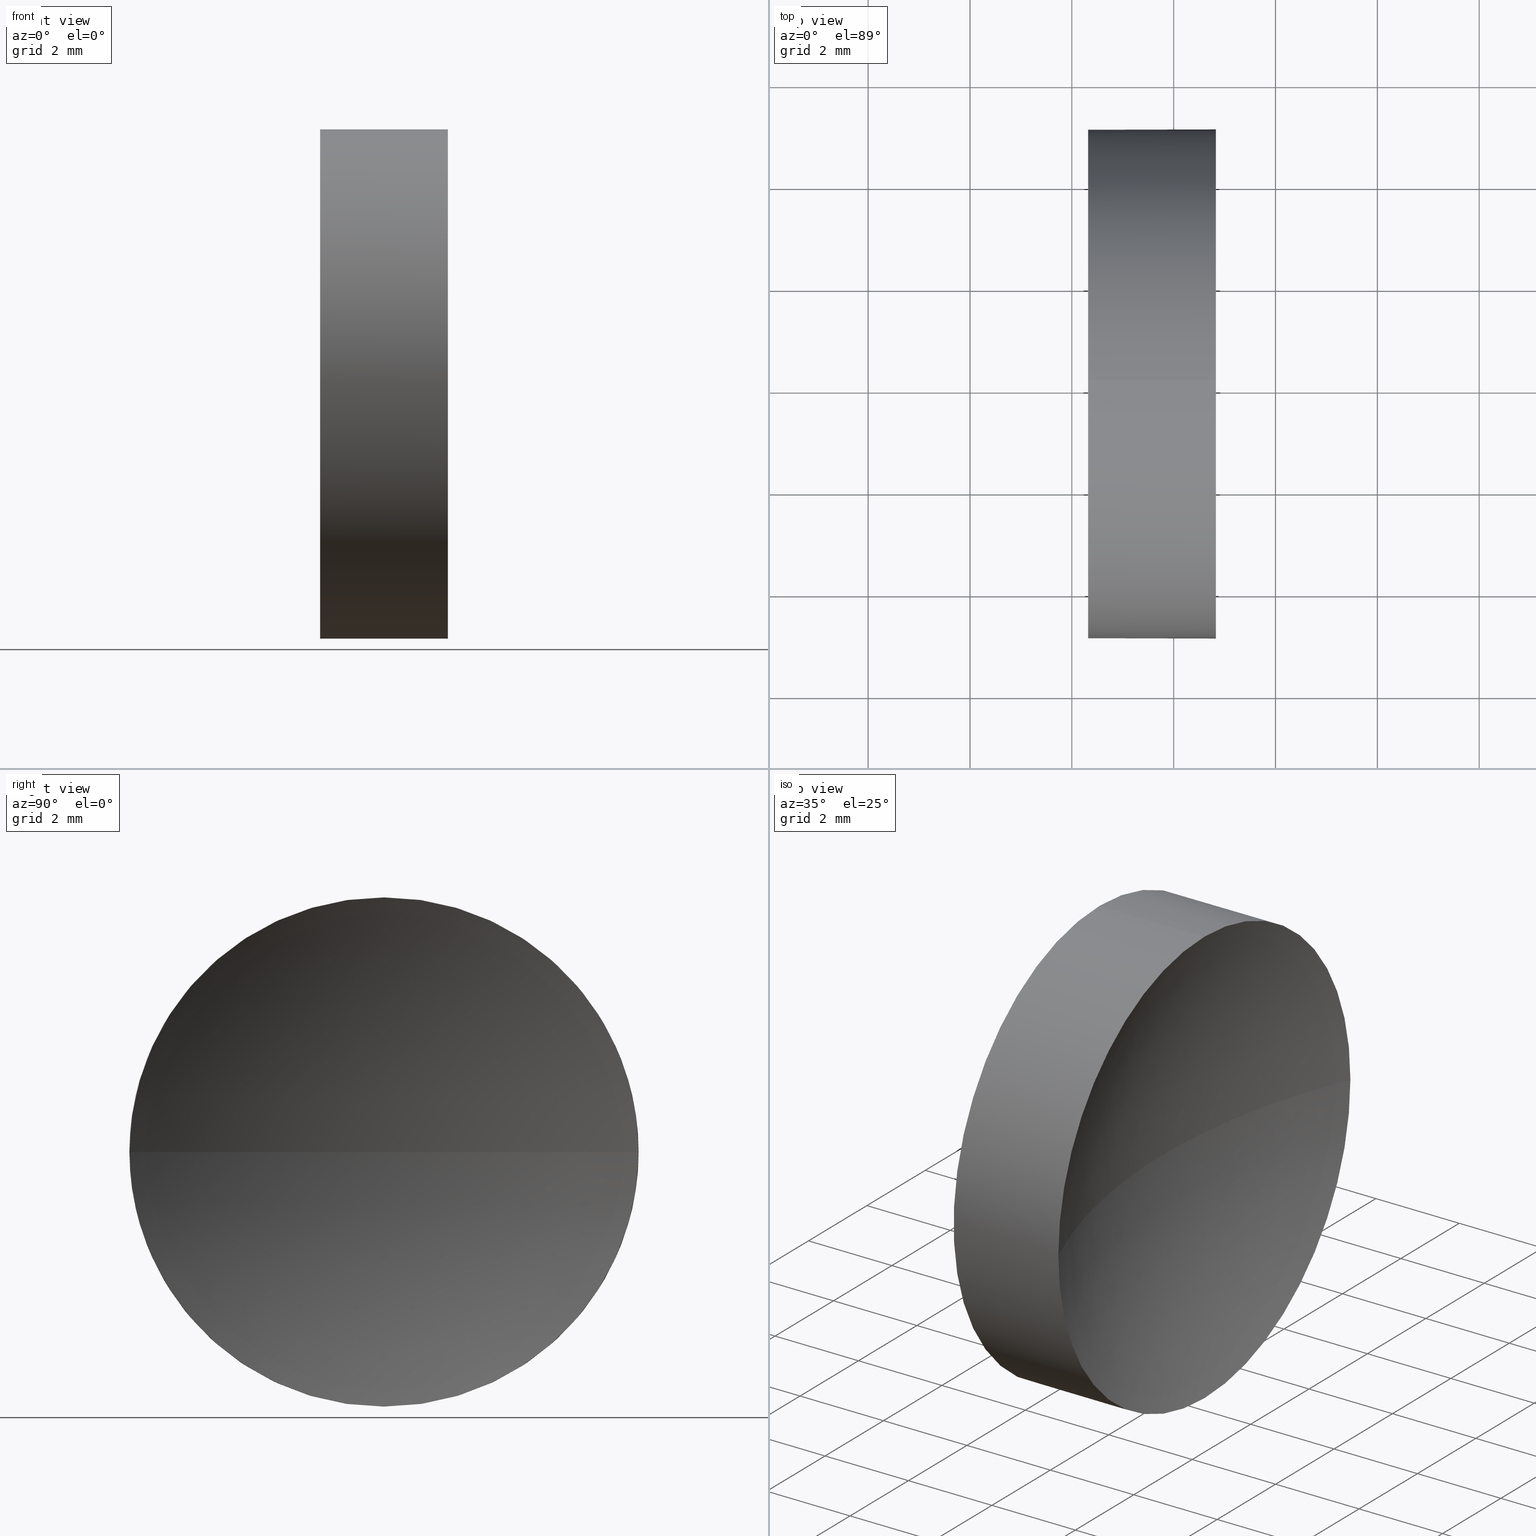
[diagram: canonical four-view strip — front | top / right | iso, engineering-drawing reading convention]
A machine part, canonical four-view strip (front | top / right | iso — engineering-drawing reading convention). The complete STEP part file that produces these views, byte-faithful:
ISO-10303-21;
HEADER;
FILE_DESCRIPTION (( 'STEP AP214' ),
    '1' );
FILE_NAME ('120013.STEP',
    '2019-06-14T05:32:41',
    ( '' ),
    ( '' ),
    'SwSTEP 2.0',
    'SolidWorks 2016',
    '' );
FILE_SCHEMA (( 'AUTOMOTIVE_DESIGN' ));
ENDSEC;

DATA;
#1 = EDGE_CURVE ( 'NONE', #11, #20, #21, .T. ) ;
#2 = CARTESIAN_POINT ( 'NONE',  ( 45.81958524454067600, 26.08904114919495900, 0.0000000000000000000 ) ) ;
#3 = MANIFOLD_SOLID_BREP ( '��ת1', #96 ) ;
#4 = EDGE_CURVE ( 'NONE', #20, #98, #167, .T. ) ;
#5 = ORIENTED_EDGE ( 'NONE', *, *, #84, .F. ) ;
#6 = CARTESIAN_POINT ( 'NONE',  ( 46.82958549791030100, 31.08904114919495500, 6.123233995736764300E-016 ) ) ;
#7 = DIRECTION ( 'NONE',  ( -1.000000000000000000, -0.0000000000000000000, -0.0000000000000000000 ) ) ;
#8 = CARTESIAN_POINT ( 'NONE',  ( 58.70081989027306700, 26.08904114919495900, 0.0000000000000000000 ) ) ;
#9 = AXIS2_PLACEMENT_3D ( 'NONE', #68, #47, #123 ) ;
#10 = DIRECTION ( 'NONE',  ( -1.000000000000000000, -0.0000000000000000000, -0.0000000000000000000 ) ) ;
#11 = VERTEX_POINT ( 'NONE', #87 ) ;
#12 = PRODUCT ( '120013', '120013', '', ( #69 ) ) ;
#13 = ORIENTED_EDGE ( 'NONE', *, *, #95, .F. ) ;
#14 = EDGE_LOOP ( 'NONE', ( #83, #94 ) ) ;
#15 = DIRECTION ( 'NONE',  ( 0.0000000000000000000, -1.000000000000000000, -1.224646799147353500E-016 ) ) ;
#16 = DIRECTION ( 'NONE',  ( -1.000000000000000000, -0.0000000000000000000, -0.0000000000000000000 ) ) ;
#17 = CARTESIAN_POINT ( 'NONE',  ( 46.82958549791030100, 26.08904114919495900, 0.0000000000000000000 ) ) ;
#18 = EDGE_CURVE ( 'NONE', #118, #54, #30, .T. ) ;
#19 = DIRECTION ( 'NONE',  ( 0.0000000000000000000, 0.0000000000000000000, 1.000000000000000000 ) ) ;
#20 = VERTEX_POINT ( 'NONE', #6 ) ;
#21 = CIRCLE ( 'NONE', #109, 5.000000000000000900 ) ;
#22 = APPLICATION_PROTOCOL_DEFINITION ( 'draft international standard', 'automotive_design', 1998, #184 ) ;
#23 = VECTOR ( 'NONE', #39, 1000.000000000000000 ) ;
#24 = FACE_OUTER_BOUND ( 'NONE', #76, .T. ) ;
#25 = COLOUR_RGB ( '',1.000000000000000000, 1.000000000000000000, 1.000000000000000000 ) ;
#26 = MECHANICAL_DESIGN_GEOMETRIC_PRESENTATION_REPRESENTATION (  '', ( #163 ), #119 ) ;
#27 = FILL_AREA_STYLE ('',( #86 ) ) ;
#28 = DIRECTION ( 'NONE',  ( -1.000000000000000000, -0.0000000000000000000, -0.0000000000000000000 ) ) ;
#29 = AXIS2_PLACEMENT_3D ( 'NONE', #137, #48, #81 ) ;
#30 = LINE ( 'NONE', #102, #23 ) ;
#31 = ORIENTED_EDGE ( 'NONE', *, *, #18, .T. ) ;
#32 = DIRECTION ( 'NONE',  ( -1.000000000000000000, -0.0000000000000000000, -0.0000000000000000000 ) ) ;
#33 =( LENGTH_UNIT ( ) NAMED_UNIT ( * ) SI_UNIT ( .MILLI., .METRE. ) );
#34 = CIRCLE ( 'NONE', #124, 5.000000000000000900 ) ;
#35 = VERTEX_POINT ( 'NONE', #134 ) ;
#36 = AXIS2_PLACEMENT_3D ( 'NONE', #17, #92, #165 ) ;
#37 = UNCERTAINTY_MEASURE_WITH_UNIT (LENGTH_MEASURE( 1.000000000000000100E-005 ), #63, 'distance_accuracy_value', 'NONE');
#38 = AXIS2_PLACEMENT_3D ( 'NONE', #153, #10, #65 ) ;
#39 = DIRECTION ( 'NONE',  ( -1.000000000000000000, -0.0000000000000000000, -0.0000000000000000000 ) ) ;
#40 = CARTESIAN_POINT ( 'NONE',  ( 42.44986111413682300, 26.08904114919495900, 5.000000000000000900 ) ) ;
#41 = DIRECTION ( 'NONE',  ( 0.0000000000000000000, 0.0000000000000000000, 1.000000000000000000 ) ) ;
#42 = FACE_OUTER_BOUND ( 'NONE', #88, .T. ) ;
#43 = ORIENTED_EDGE ( 'NONE', *, *, #4, .T. ) ;
#44 = CARTESIAN_POINT ( 'NONE',  ( 46.82958549791030100, 26.08904114919495900, -5.000000000000000900 ) ) ;
#45 =( GEOMETRIC_REPRESENTATION_CONTEXT ( 3 ) GLOBAL_UNCERTAINTY_ASSIGNED_CONTEXT ( ( #80 ) ) GLOBAL_UNIT_ASSIGNED_CONTEXT ( ( #33, #166, #164 ) ) REPRESENTATION_CONTEXT ( 'NONE', 'WORKASPACE' ) );
#46 = DIRECTION ( 'NONE',  ( 0.0000000000000000000, 0.0000000000000000000, 1.000000000000000000 ) ) ;
#47 = DIRECTION ( 'NONE',  ( -1.000000000000000000, -0.0000000000000000000, -0.0000000000000000000 ) ) ;
#48 = DIRECTION ( 'NONE',  ( 0.0000000000000000000, 0.0000000000000000000, 1.000000000000000000 ) ) ;
#49 = PRODUCT_DEFINITION ( 'δ֪', '', #71, #75 ) ;
#50 = CIRCLE ( 'NONE', #130, 12.88123464573238900 ) ;
#51 = STYLED_ITEM ( 'NONE', ( #170 ), #127 ) ;
#52 = ADVANCED_FACE ( 'NONE', ( #151 ), #70, .F. ) ;
#53 = ORIENTED_EDGE ( 'NONE', *, *, #84, .T. ) ;
#54 = VERTEX_POINT ( 'NONE', #77 ) ;
#55 = EDGE_CURVE ( 'NONE', #11, #35, #57, .T. ) ;
#56 = SURFACE_STYLE_USAGE ( .BOTH. , #162 ) ;
#57 = LINE ( 'NONE', #40, #156 ) ;
#58 = ORIENTED_EDGE ( 'NONE', *, *, #97, .T. ) ;
#59 = CARTESIAN_POINT ( 'NONE',  ( 44.31958549791029600, 26.08904114919495900, 0.0000000000000000000 ) ) ;
#60 = PRESENTATION_LAYER_ASSIGNMENT (  '', '', ( #51 ) ) ;
#61 = CARTESIAN_POINT ( 'NONE',  ( 58.70081989027306700, 26.08904114919495900, 0.0000000000000000000 ) ) ;
#62 = AXIS2_PLACEMENT_3D ( 'NONE', #91, #32, #46 ) ;
#63 =( LENGTH_UNIT ( ) NAMED_UNIT ( * ) SI_UNIT ( .MILLI., .METRE. ) );
#64 = ORIENTED_EDGE ( 'NONE', *, *, #55, .T. ) ;
#65 = DIRECTION ( 'NONE',  ( 0.0000000000000000000, 0.0000000000000000000, 1.000000000000000000 ) ) ;
#66 = FILL_AREA_STYLE_COLOUR ( '', #25 ) ;
#67 = FILL_AREA_STYLE ('',( #66 ) ) ;
#68 = CARTESIAN_POINT ( 'NONE',  ( 44.31958549791029600, 26.08904114919495900, 0.0000000000000000000 ) ) ;
#69 = PRODUCT_CONTEXT ( 'NONE', #78, 'mechanical' ) ;
#70 = SPHERICAL_SURFACE ( 'NONE', #185, 12.88123464573238900 ) ;
#71 = PRODUCT_DEFINITION_FORMATION_WITH_SPECIFIED_SOURCE ( '�κ�', '', #12, .NOT_KNOWN. ) ;
#72 = ADVANCED_FACE ( 'NONE', ( #183 ), #174, .F. ) ;
#73 = COLOUR_RGB ( '',1.000000000000000000, 1.000000000000000000, 1.000000000000000000 ) ;
#74 = CYLINDRICAL_SURFACE ( 'NONE', #62, 5.000000000000000900 ) ;
#75 = PRODUCT_DEFINITION_CONTEXT ( 'detailed design', #184, 'design' ) ;
#76 = EDGE_LOOP ( 'NONE', ( #104, #31, #136, #158, #157 ) ) ;
#77 = CARTESIAN_POINT ( 'NONE',  ( 44.31958549791029600, 26.08904114919495900, -5.000000000000000900 ) ) ;
#78 = APPLICATION_CONTEXT ( 'automotive_design' ) ;
#79 =( LENGTH_UNIT ( ) NAMED_UNIT ( * ) SI_UNIT ( .MILLI., .METRE. ) );
#80 = UNCERTAINTY_MEASURE_WITH_UNIT (LENGTH_MEASURE( 1.000000000000000100E-005 ), #33, 'distance_accuracy_value', 'NONE');
#81 = DIRECTION ( 'NONE',  ( 0.0000000000000000000, -1.000000000000000000, 0.0000000000000000000 ) ) ;
#82 = SPHERICAL_SURFACE ( 'NONE', #29, 12.88123464573238900 ) ;
#83 = ORIENTED_EDGE ( 'NONE', *, *, #155, .T. ) ;
#84 = EDGE_CURVE ( 'NONE', #177, #11, #34, .T. ) ;
#85 =( NAMED_UNIT ( * ) PLANE_ANGLE_UNIT ( ) SI_UNIT ( $, .RADIAN. ) );
#86 = FILL_AREA_STYLE_COLOUR ( '', #73 ) ;
#87 = CARTESIAN_POINT ( 'NONE',  ( 46.82958549791030100, 26.08904114919495900, 5.000000000000000900 ) ) ;
#88 = EDGE_LOOP ( 'NONE', ( #99, #58, #53, #64, #111 ) ) ;
#89 = CARTESIAN_POINT ( 'NONE',  ( 44.31958549791029600, 26.08904114919495900, 0.0000000000000000000 ) ) ;
#90 = EDGE_CURVE ( 'NONE', #54, #35, #172, .T. ) ;
#91 = CARTESIAN_POINT ( 'NONE',  ( 42.44986111413682300, 26.08904114919495900, 0.0000000000000000000 ) ) ;
#92 = DIRECTION ( 'NONE',  ( -1.000000000000000000, -0.0000000000000000000, -0.0000000000000000000 ) ) ;
#93 =( NAMED_UNIT ( * ) PLANE_ANGLE_UNIT ( ) SI_UNIT ( $, .RADIAN. ) );
#94 = ORIENTED_EDGE ( 'NONE', *, *, #90, .T. ) ;
#95 = EDGE_CURVE ( 'NONE', #177, #98, #50, .T. ) ;
#96 = CLOSED_SHELL ( 'NONE', ( #143, #52, #114, #117, #72 ) ) ;
#97 = EDGE_CURVE ( 'NONE', #118, #177, #135, .T. ) ;
#98 = VERTEX_POINT ( 'NONE', #2 ) ;
#99 = ORIENTED_EDGE ( 'NONE', *, *, #18, .F. ) ;
#100 = EDGE_CURVE ( 'NONE', #20, #118, #161, .T. ) ;
#101 = SURFACE_STYLE_FILL_AREA ( #67 ) ;
#102 = CARTESIAN_POINT ( 'NONE',  ( 42.44986111413682300, 26.08904114919495900, -5.000000000000000900 ) ) ;
#103 = DIRECTION ( 'NONE',  ( 1.000000000000000000, 0.0000000000000000000, 0.0000000000000000000 ) ) ;
#104 = ORIENTED_EDGE ( 'NONE', *, *, #100, .T. ) ;
#105 = CARTESIAN_POINT ( 'NONE',  ( 46.82958549791030100, 26.08904114919495900, 0.0000000000000000000 ) ) ;
#106 = CARTESIAN_POINT ( 'NONE',  ( 46.82958549791030100, 26.08904114919495900, 0.0000000000000000000 ) ) ;
#107 = DIRECTION ( 'NONE',  ( 0.0000000000000000000, 0.0000000000000000000, 1.000000000000000000 ) ) ;
#108 = SHAPE_DEFINITION_REPRESENTATION ( #186, #127 ) ;
#109 = AXIS2_PLACEMENT_3D ( 'NONE', #105, #176, #41 ) ;
#110 =( NAMED_UNIT ( * ) SI_UNIT ( $, .STERADIAN. ) SOLID_ANGLE_UNIT ( ) );
#111 = ORIENTED_EDGE ( 'NONE', *, *, #90, .F. ) ;
#112 = MECHANICAL_DESIGN_GEOMETRIC_PRESENTATION_REPRESENTATION (  '', ( #51 ), #139 ) ;
#113 = AXIS2_PLACEMENT_3D ( 'NONE', #61, #132, #15 ) ;
#114 = ADVANCED_FACE ( 'NONE', ( #128 ), #82, .F. ) ;
#115 = UNCERTAINTY_MEASURE_WITH_UNIT (LENGTH_MEASURE( 1.000000000000000100E-005 ), #79, 'distance_accuracy_value', 'NONE');
#116 = AXIS2_PLACEMENT_3D ( 'NONE', #59, #103, #147 ) ;
#117 = ADVANCED_FACE ( 'NONE', ( #42 ), #175, .T. ) ;
#118 = VERTEX_POINT ( 'NONE', #44 ) ;
#119 =( GEOMETRIC_REPRESENTATION_CONTEXT ( 3 ) GLOBAL_UNCERTAINTY_ASSIGNED_CONTEXT ( ( #37 ) ) GLOBAL_UNIT_ASSIGNED_CONTEXT ( ( #63, #85, #146 ) ) REPRESENTATION_CONTEXT ( 'NONE', 'WORKASPACE' ) );
#120 = ORIENTED_EDGE ( 'NONE', *, *, #4, .F. ) ;
#121 = AXIS2_PLACEMENT_3D ( 'NONE', #150, #178, #179 ) ;
#122 = DIRECTION ( 'NONE',  ( -1.000000000000000000, 0.0000000000000000000, 0.0000000000000000000 ) ) ;
#123 = DIRECTION ( 'NONE',  ( 0.0000000000000000000, 0.0000000000000000000, 1.000000000000000000 ) ) ;
#124 = AXIS2_PLACEMENT_3D ( 'NONE', #106, #7, #19 ) ;
#125 = CIRCLE ( 'NONE', #9, 5.000000000000000900 ) ;
#126 = DIRECTION ( 'NONE',  ( 1.000000000000000000, 0.0000000000000000000, 0.0000000000000000000 ) ) ;
#127 = ADVANCED_BREP_SHAPE_REPRESENTATION ( '120013', ( #3, #160 ), #45 ) ;
#128 = FACE_OUTER_BOUND ( 'NONE', #133, .T. ) ;
#129 = EDGE_LOOP ( 'NONE', ( #142, #43, #13, #148 ) ) ;
#130 = AXIS2_PLACEMENT_3D ( 'NONE', #8, #182, #122 ) ;
#131 = AXIS2_PLACEMENT_3D ( 'NONE', #89, #16, #107 ) ;
#132 = DIRECTION ( 'NONE',  ( 0.0000000000000000000, -1.224646799147353200E-016, 1.000000000000000000 ) ) ;
#133 = EDGE_LOOP ( 'NONE', ( #120, #144, #5, #141 ) ) ;
#134 = CARTESIAN_POINT ( 'NONE',  ( 44.31958549791029600, 26.08904114919495900, 5.000000000000000900 ) ) ;
#135 = CIRCLE ( 'NONE', #36, 5.000000000000000900 ) ;
#136 = ORIENTED_EDGE ( 'NONE', *, *, #155, .F. ) ;
#137 = CARTESIAN_POINT ( 'NONE',  ( 58.70081989027306700, 26.08904114919495900, 0.0000000000000000000 ) ) ;
#138 = APPLICATION_PROTOCOL_DEFINITION ( 'draft international standard', 'automotive_design', 1998, #78 ) ;
#139 =( GEOMETRIC_REPRESENTATION_CONTEXT ( 3 ) GLOBAL_UNCERTAINTY_ASSIGNED_CONTEXT ( ( #115 ) ) GLOBAL_UNIT_ASSIGNED_CONTEXT ( ( #79, #93, #110 ) ) REPRESENTATION_CONTEXT ( 'NONE', 'WORKASPACE' ) );
#140 = SURFACE_STYLE_USAGE ( .BOTH. , #180 ) ;
#141 = ORIENTED_EDGE ( 'NONE', *, *, #95, .T. ) ;
#142 = ORIENTED_EDGE ( 'NONE', *, *, #100, .F. ) ;
#143 = ADVANCED_FACE ( 'NONE', ( #24 ), #74, .T. ) ;
#144 = ORIENTED_EDGE ( 'NONE', *, *, #1, .F. ) ;
#145 = CARTESIAN_POINT ( 'NONE',  ( 58.70081989027306700, 26.08904114919495900, 0.0000000000000000000 ) ) ;
#146 =( NAMED_UNIT ( * ) SI_UNIT ( $, .STERADIAN. ) SOLID_ANGLE_UNIT ( ) );
#147 = DIRECTION ( 'NONE',  ( 0.0000000000000000000, 0.0000000000000000000, -1.000000000000000000 ) ) ;
#148 = ORIENTED_EDGE ( 'NONE', *, *, #97, .F. ) ;
#149 = DIRECTION ( 'NONE',  ( 0.0000000000000000000, -1.000000000000000000, 0.0000000000000000000 ) ) ;
#150 = CARTESIAN_POINT ( 'NONE',  ( 46.82958549791030100, 26.08904114919495900, 0.0000000000000000000 ) ) ;
#151 = FACE_OUTER_BOUND ( 'NONE', #129, .T. ) ;
#152 = CARTESIAN_POINT ( 'NONE',  ( 46.82958549791030100, 21.08904114919496200, 0.0000000000000000000 ) ) ;
#153 = CARTESIAN_POINT ( 'NONE',  ( 42.44986111413682300, 26.08904114919495900, 0.0000000000000000000 ) ) ;
#154 = CARTESIAN_POINT ( 'NONE',  ( 0.0000000000000000000, 0.0000000000000000000, 0.0000000000000000000 ) ) ;
#155 = EDGE_CURVE ( 'NONE', #35, #54, #125, .T. ) ;
#156 = VECTOR ( 'NONE', #28, 1000.000000000000000 ) ;
#157 = ORIENTED_EDGE ( 'NONE', *, *, #1, .T. ) ;
#158 = ORIENTED_EDGE ( 'NONE', *, *, #55, .F. ) ;
#159 = DIRECTION ( 'NONE',  ( 0.0000000000000000000, 0.0000000000000000000, 1.000000000000000000 ) ) ;
#160 = AXIS2_PLACEMENT_3D ( 'NONE', #154, #168, #126 ) ;
#161 = CIRCLE ( 'NONE', #121, 5.000000000000000900 ) ;
#162 = SURFACE_SIDE_STYLE ('',( #169 ) ) ;
#163 = STYLED_ITEM ( 'NONE', ( #173 ), #3 ) ;
#164 =( NAMED_UNIT ( * ) SI_UNIT ( $, .STERADIAN. ) SOLID_ANGLE_UNIT ( ) );
#165 = DIRECTION ( 'NONE',  ( 0.0000000000000000000, 0.0000000000000000000, 1.000000000000000000 ) ) ;
#166 =( NAMED_UNIT ( * ) PLANE_ANGLE_UNIT ( ) SI_UNIT ( $, .RADIAN. ) );
#167 = CIRCLE ( 'NONE', #113, 12.88123464573238900 ) ;
#168 = DIRECTION ( 'NONE',  ( 0.0000000000000000000, 0.0000000000000000000, 1.000000000000000000 ) ) ;
#169 = SURFACE_STYLE_FILL_AREA ( #27 ) ;
#170 = PRESENTATION_STYLE_ASSIGNMENT (( #140 ) ) ;
#171 = PRESENTATION_LAYER_ASSIGNMENT (  '', '', ( #163 ) ) ;
#172 = CIRCLE ( 'NONE', #131, 5.000000000000000900 ) ;
#173 = PRESENTATION_STYLE_ASSIGNMENT (( #56 ) ) ;
#174 = PLANE ( 'NONE',  #116 ) ;
#175 = CYLINDRICAL_SURFACE ( 'NONE', #38, 5.000000000000000900 ) ;
#176 = DIRECTION ( 'NONE',  ( -1.000000000000000000, -0.0000000000000000000, -0.0000000000000000000 ) ) ;
#177 = VERTEX_POINT ( 'NONE', #152 ) ;
#178 = DIRECTION ( 'NONE',  ( -1.000000000000000000, -0.0000000000000000000, -0.0000000000000000000 ) ) ;
#179 = DIRECTION ( 'NONE',  ( 0.0000000000000000000, 0.0000000000000000000, 1.000000000000000000 ) ) ;
#180 = SURFACE_SIDE_STYLE ('',( #101 ) ) ;
#181 = PRODUCT_RELATED_PRODUCT_CATEGORY ( 'part', '', ( #12 ) ) ;
#182 = DIRECTION ( 'NONE',  ( 0.0000000000000000000, 0.0000000000000000000, -1.000000000000000000 ) ) ;
#183 = FACE_OUTER_BOUND ( 'NONE', #14, .T. ) ;
#184 = APPLICATION_CONTEXT ( 'automotive_design' ) ;
#185 = AXIS2_PLACEMENT_3D ( 'NONE', #145, #159, #149 ) ;
#186 = PRODUCT_DEFINITION_SHAPE ( 'NONE', 'NONE',  #49 ) ;
ENDSEC;
END-ISO-10303-21;
